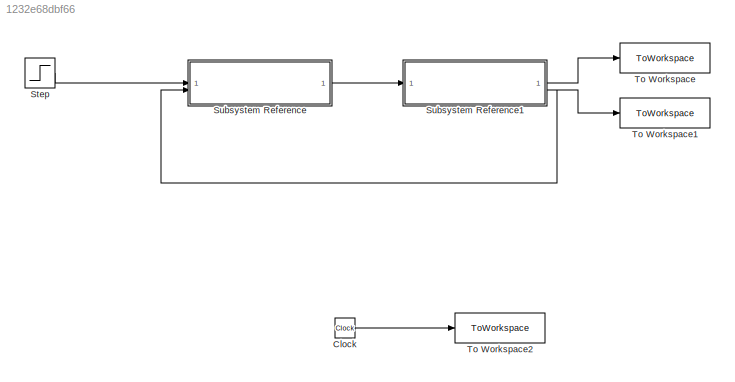
MODEL slx_1232e68dbf66
KIND model
CONFIG AbsTol = auto
CONFIG EnableMultiTasking = off
CONFIG FixedStep = 0.001
CONFIG MaxStep = auto
CONFIG MinStep = auto
CONFIG RelTol = 1e-3
CONFIG SampleTimeConstraint = Unconstrained
CONFIG SolverName = ode3
CONFIG StartTime = 0.0
CONFIG StopTime = 2
BLOCK [Clock] Clock
BLOCK [Step] Step
  After = 10
  SampleTime = 0
  Time = 0.05
BLOCK [SubSystem] Subsystem Reference
  ReferencedSubsystem = electric_valva
BLOCK [SubSystem] Subsystem Reference1
  ReferencedSubsystem = mecanic_valva
BLOCK [ToWorkspace] To Workspace
  FixptAsFi = on
  MaxDataPoints = inf
  SampleTime = -1
  VariableName = x
BLOCK [ToWorkspace] To Workspace1
  FixptAsFi = on
  MaxDataPoints = inf
  SampleTime = -1
  VariableName = xdot
BLOCK [ToWorkspace] To Workspace2
  FixptAsFi = on
  MaxDataPoints = inf
  SampleTime = -1
  VariableName = t
LINE Clock:1 -> To Workspace2:1
LINE Step:1 -> Subsystem Reference:1
LINE Subsystem Reference1:1 -> To Workspace:1
NET Subsystem Reference1:2 -> Subsystem Reference:2, To Workspace1:1
LINE Subsystem Reference:1 -> Subsystem Reference1:1
note: NET lines group one-source signal fan-out (src -> all destinations, sorted); 1:1 wires keep LINE
